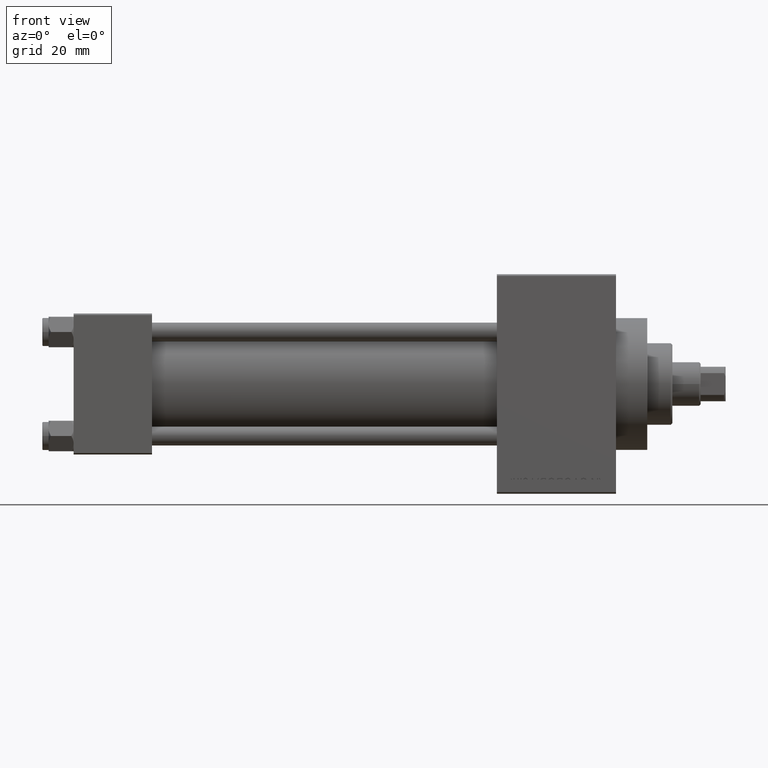
[diagram: clean part render]
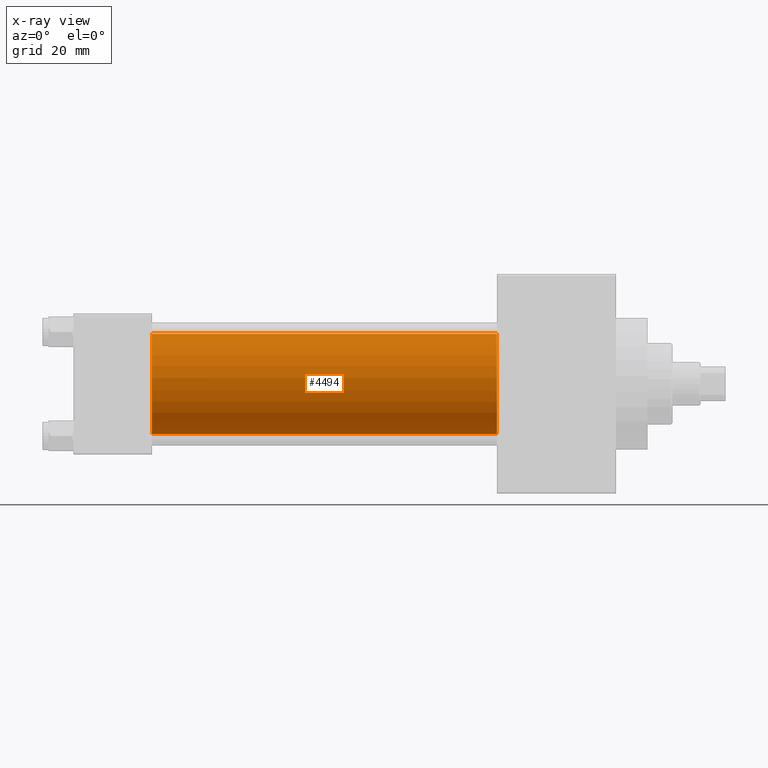
[diagram: x-ray — body ghosted, one internal face saturated and labeled with its STEP entity id]
A machine part, front view, then the same camera in x-ray: the body is ghosted and one INTERNAL B-rep face — a face not visible from any outside direction — is saturated and labeled: STEP entity #4494.
In plain terms, the highlighted cylindrical surface (partial cylindrical patch) has radius 16 mm, axis along (-1, -0, -0).
Its self-contained STEP definition (entity closure, byte-faithful):
#1207 = VECTOR ( 'NONE', #7016, 1000.000000000000000 ) ;
#2047 = CARTESIAN_POINT ( 'NONE',  ( 135.0000000000000000, -2.602085213965210642E-15, 16.00000000000000000 ) ) ;
#2881 = VERTEX_POINT ( 'NONE', #37362 ) ;
#3988 = CARTESIAN_POINT ( 'NONE',  ( 25.00000000000000000, -2.602085213965210642E-15, 0.000000000000000000 ) ) ;
#4494 = ADVANCED_FACE ( 'NONE', ( #33676 ), #26979, .F. ) ;
#4975 = VERTEX_POINT ( 'NONE', #19567 ) ;
#6317 = DIRECTION ( 'NONE',  ( 1.000000000000000000, 0.000000000000000000, 0.000000000000000000 ) ) ;
#6655 = DIRECTION ( 'NONE',  ( 1.000000000000000000, 0.000000000000000000, 0.000000000000000000 ) ) ;
#7016 = DIRECTION ( 'NONE',  ( -1.000000000000000000, -0.000000000000000000, -0.000000000000000000 ) ) ;
#8707 = CARTESIAN_POINT ( 'NONE',  ( 25.00000000000000000, -6.426503353294456087E-16, -16.00000000000000000 ) ) ;
#9452 = VERTEX_POINT ( 'NONE', #8707 ) ;
#10190 = ORIENTED_EDGE ( 'NONE', *, *, #17821, .T. ) ;
#10592 = CARTESIAN_POINT ( 'NONE',  ( 135.0000000000000000, -6.426503353294456087E-16, -16.00000000000000000 ) ) ;
#10597 = AXIS2_PLACEMENT_3D ( 'NONE', #18834, #11658, #23137 ) ;
#11658 = DIRECTION ( 'NONE',  ( -1.000000000000000000, -0.000000000000000000, -0.000000000000000000 ) ) ;
#14517 = DIRECTION ( 'NONE',  ( 0.000000000000000000, 0.000000000000000000, -1.000000000000000000 ) ) ;
#16825 = CARTESIAN_POINT ( 'NONE',  ( 135.0000000000000000, -2.602085213965210642E-15, 0.000000000000000000 ) ) ;
#17821 = EDGE_CURVE ( 'NONE', #2881, #4975, #43236, .T. ) ;
#18030 = EDGE_CURVE ( 'NONE', #4975, #9452, #40476, .T. ) ;
#18749 = AXIS2_PLACEMENT_3D ( 'NONE', #16825, #6317, #35495 ) ;
#18834 = CARTESIAN_POINT ( 'NONE',  ( 135.0000000000000000, -2.602085213965210642E-15, 0.000000000000000000 ) ) ;
#19211 = AXIS2_PLACEMENT_3D ( 'NONE', #3988, #6655, #14517 ) ;
#19567 = CARTESIAN_POINT ( 'NONE',  ( 135.0000000000000000, -6.426503353294456087E-16, -16.00000000000000000 ) ) ;
#23105 = EDGE_CURVE ( 'NONE', #2881, #32435, #45848, .T. ) ;
#23137 = DIRECTION ( 'NONE',  ( 0.000000000000000000, 0.000000000000000000, 1.000000000000000000 ) ) ;
#25412 = VECTOR ( 'NONE', #33864, 1000.000000000000000 ) ;
#26890 = CIRCLE ( 'NONE', #19211, 16.00000000000000000 ) ;
#26979 = CYLINDRICAL_SURFACE ( 'NONE', #10597, 16.00000000000000000 ) ;
#32435 = VERTEX_POINT ( 'NONE', #39475 ) ;
#33676 = FACE_OUTER_BOUND ( 'NONE', #41118, .T. ) ;
#33864 = DIRECTION ( 'NONE',  ( -1.000000000000000000, -0.000000000000000000, -0.000000000000000000 ) ) ;
#33980 = EDGE_CURVE ( 'NONE', #32435, #9452, #26890, .T. ) ;
#34742 = ORIENTED_EDGE ( 'NONE', *, *, #33980, .F. ) ;
#35495 = DIRECTION ( 'NONE',  ( 0.000000000000000000, 0.000000000000000000, -1.000000000000000000 ) ) ;
#35884 = ORIENTED_EDGE ( 'NONE', *, *, #23105, .F. ) ;
#37362 = CARTESIAN_POINT ( 'NONE',  ( 135.0000000000000000, -2.602085213965210642E-15, 16.00000000000000000 ) ) ;
#39475 = CARTESIAN_POINT ( 'NONE',  ( 25.00000000000000000, -2.602085213965210642E-15, 16.00000000000000000 ) ) ;
#40476 = LINE ( 'NONE', #10592, #1207 ) ;
#41118 = EDGE_LOOP ( 'NONE', ( #10190, #44323, #34742, #35884 ) ) ;
#43236 = CIRCLE ( 'NONE', #18749, 16.00000000000000000 ) ;
#44323 = ORIENTED_EDGE ( 'NONE', *, *, #18030, .T. ) ;
#45848 = LINE ( 'NONE', #2047, #25412 ) ;